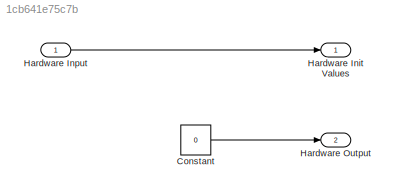
MODEL slx_1cb641e75c7b
KIND model
CONFIG AbsTol = auto
CONFIG FixedStep = auto
CONFIG MaxStep = auto
CONFIG MinStep = auto
CONFIG RelTol = 1e-3
CONFIG SampleTimeConstraint = Unconstrained
CONFIG Solver = ode45
CONFIG SolverMode = Auto
CONFIG SolverName = ode45
CONFIG StartTime = 0.0
CONFIG StopTime = 10.0
BLOCK [Constant] Constant
  OutDataTypeStr = Bus: HARDWARE_OUTPUT_BUS
  Value = 0
BLOCK [Outport] Hardware Init Values
  BusOutputAsStruct = on
  IconDisplay = Port number
  OutDataTypeStr = Bus: HARDWARE_INPUT_BUS
BLOCK [Inport] Hardware Input
  BusOutputAsStruct = on
  IconDisplay = Port number
  OutDataTypeStr = Bus: HARDWARE_INPUT_BUS
BLOCK [Outport] Hardware Output
  BusOutputAsStruct = on
  IconDisplay = Port number
  OutDataTypeStr = Bus: HARDWARE_OUTPUT_BUS
  Port = 2
LINE Constant:1 -> Hardware Output:1
LINE Hardware Input:1 -> Hardware Init Values:1
